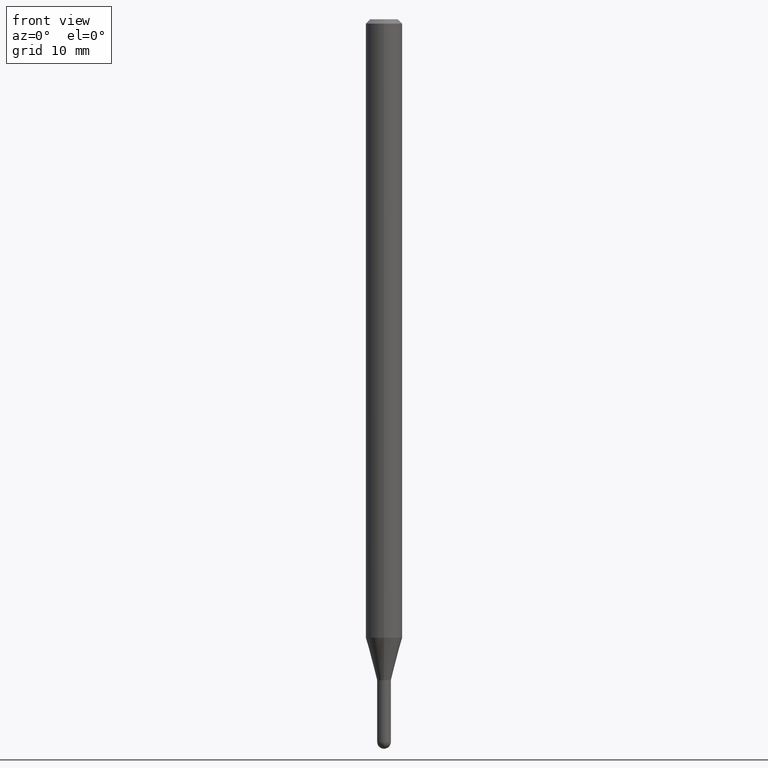
[diagram: clean part render]
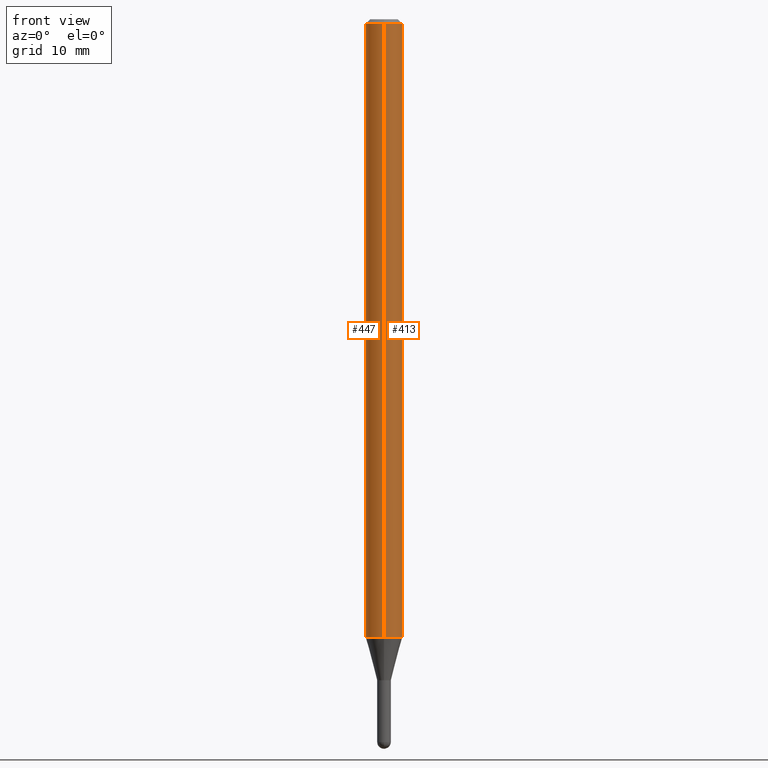
[diagram: same view with one multi-face feature highlighted, each face labeled with its STEP entity id]
A machine part, front view. The highlighted faces form ONE feature: a constant-radius fillet chain: 2 tangent blend faces with common blend radius 1.5875 mm. The faces share edges in the B-rep.
Their STEP definitions:
[1] entity #413 (Cylinder):
#4 = CYLINDRICAL_SURFACE ( 'NONE', #506, 0.06250000000000000000 ) ;
#20 = CARTESIAN_POINT ( 'NONE',  ( -4.364351673553912750E-16, -0.06250000000000005551, -0.01499999999999984852 ) ) ;
#23 = CARTESIAN_POINT ( 'NONE',  ( 5.183026483306613636E-29, -7.400052299541085290E-15, -2.119450018504819067 ) ) ;
#77 = ORIENTED_EDGE ( 'NONE', *, *, #118, .T. ) ;
#90 = VERTEX_POINT ( 'NONE', #20 ) ;
#93 = LINE ( 'NONE', #172, #126 ) ;
#108 = CARTESIAN_POINT ( 'NONE',  ( 3.668187339678129272E-31, -5.237244734434598234E-17, -0.01500000000000006710 ) ) ;
#111 = CARTESIAN_POINT ( 'NONE',  ( -4.364351673553916201E-16, -0.06250000000000000000, 2.182185306014406615E-16 ) ) ;
#114 = DIRECTION ( 'NONE',  ( -6.982962677686265922E-15, -1.000000000000000000, 3.491496489623050583E-15 ) ) ;
#116 = VECTOR ( 'NONE', #504, 39.37007874015748143 ) ;
#118 = EDGE_CURVE ( 'NONE', #197, #176, #362, .T. ) ;
#126 = VECTOR ( 'NONE', #454, 39.37007874015748143 ) ;
#142 = AXIS2_PLACEMENT_3D ( 'NONE', #23, #266, #345 ) ;
#154 = VERTEX_POINT ( 'NONE', #221 ) ;
#159 = CARTESIAN_POINT ( 'NONE',  ( 0.000000000000000000, 0.000000000000000000, 0.000000000000000000 ) ) ;
#172 = CARTESIAN_POINT ( 'NONE',  ( 4.440892098500625669E-16, 0.06250000000000000000, -2.182185306014406615E-16 ) ) ;
#176 = VERTEX_POINT ( 'NONE', #185 ) ;
#185 = CARTESIAN_POINT ( 'NONE',  ( 4.440892098501141880E-16, 0.06249999999999258232, -2.119450018504819511 ) ) ;
#197 = VERTEX_POINT ( 'NONE', #500 ) ;
#221 = CARTESIAN_POINT ( 'NONE',  ( 4.440892098501147796E-16, 0.06249999999999995837, -0.01500000000000028394 ) ) ;
#244 = ORIENTED_EDGE ( 'NONE', *, *, #476, .T. ) ;
#260 = CIRCLE ( 'NONE', #320, 0.06250000000000000000 ) ;
#266 = DIRECTION ( 'NONE',  ( -2.445458226452075287E-29, 3.491496489623050583E-15, 1.000000000000000000 ) ) ;
#274 = ORIENTED_EDGE ( 'NONE', *, *, #354, .F. ) ;
#320 = AXIS2_PLACEMENT_3D ( 'NONE', #108, #386, #505 ) ;
#335 = EDGE_CURVE ( 'NONE', #197, #90, #340, .T. ) ;
#340 = LINE ( 'NONE', #111, #116 ) ;
#345 = DIRECTION ( 'NONE',  ( -6.982962677686265922E-15, -1.000000000000000000, 4.370956789862821150E-15 ) ) ;
#350 = ORIENTED_EDGE ( 'NONE', *, *, #335, .F. ) ;
#354 = EDGE_CURVE ( 'NONE', #90, #154, #260, .T. ) ;
#362 = CIRCLE ( 'NONE', #142, 0.06250000000000000000 ) ;
#367 = EDGE_LOOP ( 'NONE', ( #77, #244, #274, #350 ) ) ;
#386 = DIRECTION ( 'NONE',  ( -2.445458226452075287E-29, 3.491496489623050583E-15, 1.000000000000000000 ) ) ;
#400 = FACE_OUTER_BOUND ( 'NONE', #367, .T. ) ;
#413 = ADVANCED_FACE ( 'NONE', ( #400 ), #4, .T. ) ;
#454 = DIRECTION ( 'NONE',  ( -2.445458226452075006E-29, 3.491496489623050583E-15, 1.000000000000000000 ) ) ;
#475 = DIRECTION ( 'NONE',  ( -2.445458226452075287E-29, 3.491496489623050583E-15, 1.000000000000000000 ) ) ;
#476 = EDGE_CURVE ( 'NONE', #176, #154, #93, .T. ) ;
#500 = CARTESIAN_POINT ( 'NONE',  ( -4.364351673553400483E-16, -0.06250000000000742462, -2.119450018504819067 ) ) ;
#504 = DIRECTION ( 'NONE',  ( -2.445458226452075006E-29, 3.491496489623050583E-15, 1.000000000000000000 ) ) ;
#505 = DIRECTION ( 'NONE',  ( -6.982962677686265922E-15, -1.000000000000000000, 3.483106191921935554E-15 ) ) ;
#506 = AXIS2_PLACEMENT_3D ( 'NONE', #159, #475, #114 ) ;
[2] entity #447 (Cylinder):
#20 = CARTESIAN_POINT ( 'NONE',  ( -4.364351673553912750E-16, -0.06250000000000005551, -0.01499999999999984852 ) ) ;
#37 = FACE_OUTER_BOUND ( 'NONE', #84, .T. ) ;
#47 = ORIENTED_EDGE ( 'NONE', *, *, #435, .T. ) ;
#48 = CIRCLE ( 'NONE', #297, 0.06250000000000000000 ) ;
#65 = DIRECTION ( 'NONE',  ( -2.445458226452075287E-29, 3.491496489623050583E-15, 1.000000000000000000 ) ) ;
#84 = EDGE_LOOP ( 'NONE', ( #411, #47, #94, #419 ) ) ;
#90 = VERTEX_POINT ( 'NONE', #20 ) ;
#93 = LINE ( 'NONE', #172, #126 ) ;
#94 = ORIENTED_EDGE ( 'NONE', *, *, #335, .T. ) ;
#111 = CARTESIAN_POINT ( 'NONE',  ( -4.364351673553916201E-16, -0.06250000000000000000, 2.182185306014406615E-16 ) ) ;
#116 = VECTOR ( 'NONE', #504, 39.37007874015748143 ) ;
#123 = CARTESIAN_POINT ( 'NONE',  ( 5.183026483306613636E-29, -7.400052299541085290E-15, -2.119450018504819067 ) ) ;
#126 = VECTOR ( 'NONE', #454, 39.37007874015748143 ) ;
#127 = DIRECTION ( 'NONE',  ( -2.445458226452075287E-29, 3.491496489623050583E-15, 1.000000000000000000 ) ) ;
#154 = VERTEX_POINT ( 'NONE', #221 ) ;
#172 = CARTESIAN_POINT ( 'NONE',  ( 4.440892098500625669E-16, 0.06250000000000000000, -2.182185306014406615E-16 ) ) ;
#176 = VERTEX_POINT ( 'NONE', #185 ) ;
#185 = CARTESIAN_POINT ( 'NONE',  ( 4.440892098501141880E-16, 0.06249999999999258232, -2.119450018504819511 ) ) ;
#190 = EDGE_CURVE ( 'NONE', #154, #90, #48, .T. ) ;
#191 = CARTESIAN_POINT ( 'NONE',  ( 0.000000000000000000, 0.000000000000000000, 0.000000000000000000 ) ) ;
#197 = VERTEX_POINT ( 'NONE', #500 ) ;
#221 = CARTESIAN_POINT ( 'NONE',  ( 4.440892098501147796E-16, 0.06249999999999995837, -0.01500000000000028394 ) ) ;
#269 = CYLINDRICAL_SURFACE ( 'NONE', #430, 0.06250000000000000000 ) ;
#271 = DIRECTION ( 'NONE',  ( -2.445458226452075287E-29, 3.491496489623050583E-15, 1.000000000000000000 ) ) ;
#297 = AXIS2_PLACEMENT_3D ( 'NONE', #303, #65, #502 ) ;
#303 = CARTESIAN_POINT ( 'NONE',  ( 3.668187339678129272E-31, -5.237244734434598234E-17, -0.01500000000000006710 ) ) ;
#304 = CIRCLE ( 'NONE', #425, 0.06250000000000000000 ) ;
#312 = DIRECTION ( 'NONE',  ( -6.982962677686265922E-15, -1.000000000000000000, 4.370956789862821150E-15 ) ) ;
#335 = EDGE_CURVE ( 'NONE', #197, #90, #340, .T. ) ;
#340 = LINE ( 'NONE', #111, #116 ) ;
#411 = ORIENTED_EDGE ( 'NONE', *, *, #476, .F. ) ;
#419 = ORIENTED_EDGE ( 'NONE', *, *, #190, .F. ) ;
#425 = AXIS2_PLACEMENT_3D ( 'NONE', #123, #127, #312 ) ;
#430 = AXIS2_PLACEMENT_3D ( 'NONE', #191, #271, #431 ) ;
#431 = DIRECTION ( 'NONE',  ( -6.982962677686265922E-15, -1.000000000000000000, 3.491496489623050583E-15 ) ) ;
#435 = EDGE_CURVE ( 'NONE', #176, #197, #304, .T. ) ;
#447 = ADVANCED_FACE ( 'NONE', ( #37 ), #269, .T. ) ;
#454 = DIRECTION ( 'NONE',  ( -2.445458226452075006E-29, 3.491496489623050583E-15, 1.000000000000000000 ) ) ;
#476 = EDGE_CURVE ( 'NONE', #176, #154, #93, .T. ) ;
#500 = CARTESIAN_POINT ( 'NONE',  ( -4.364351673553400483E-16, -0.06250000000000742462, -2.119450018504819067 ) ) ;
#502 = DIRECTION ( 'NONE',  ( -6.982962677686265922E-15, -1.000000000000000000, 3.483106191921935554E-15 ) ) ;
#504 = DIRECTION ( 'NONE',  ( -2.445458226452075006E-29, 3.491496489623050583E-15, 1.000000000000000000 ) ) ;